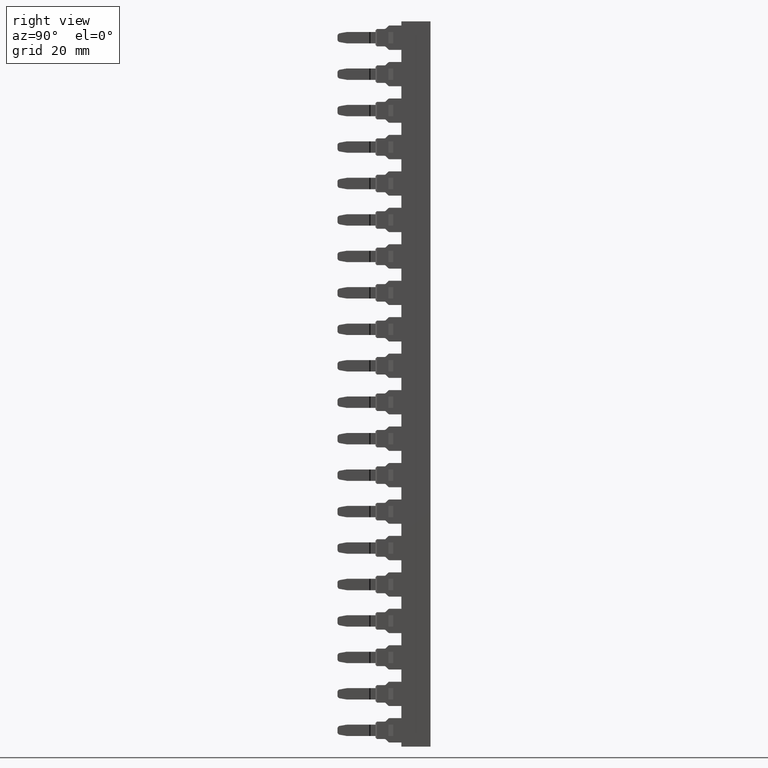
[diagram: clean part render]
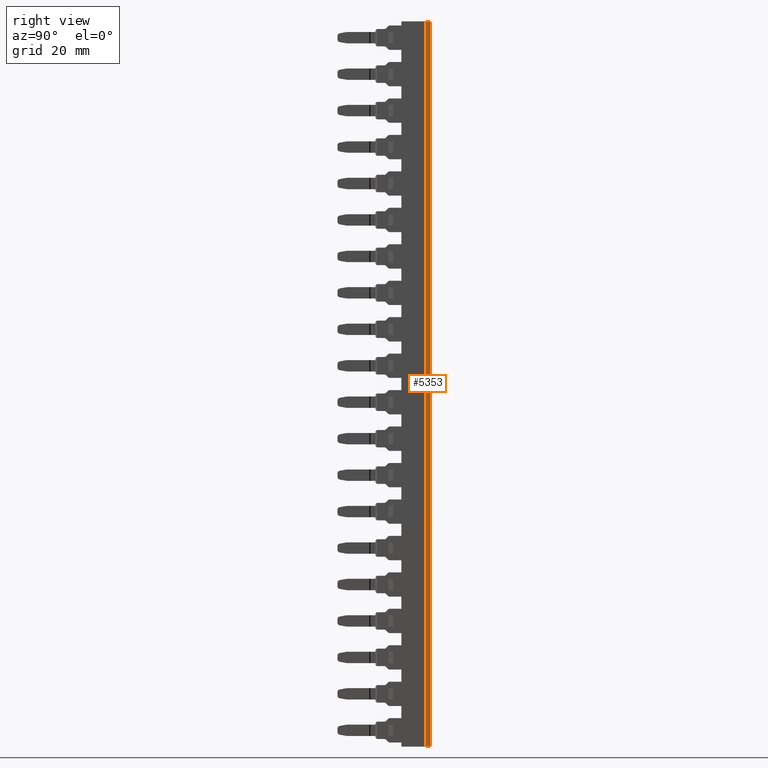
[diagram: same view with one face highlighted and labeled with its STEP entity id]
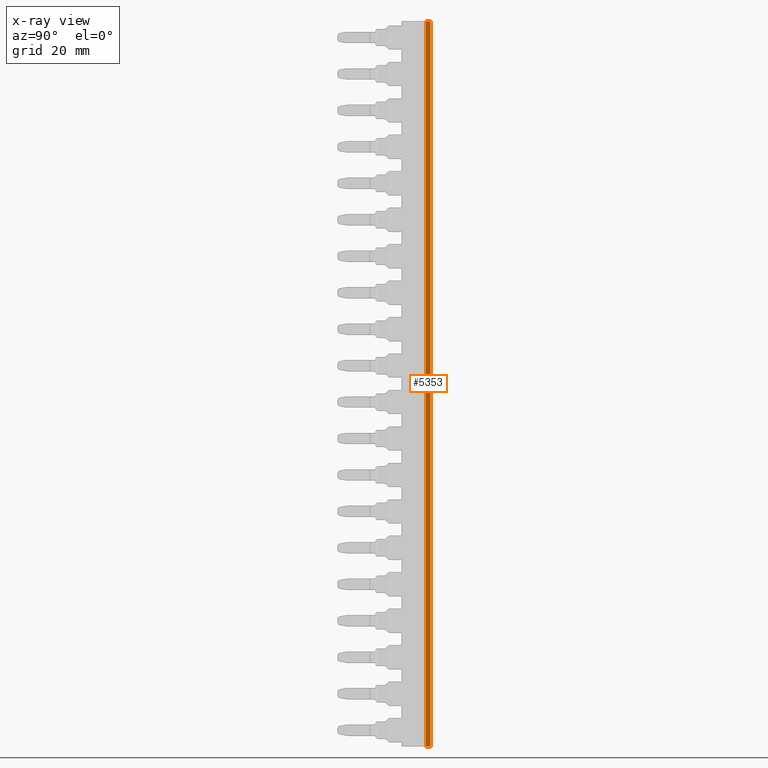
[diagram: x-ray of the same camera — body ghosted, the highlighted face saturated]
A machine part, right view. The second image highlights one B-rep face of the part: STEP entity #5353.
The next image is the same camera in x-ray: the body ghosted, the highlighted face saturated — about 0% of this face is hidden behind the body in this view.
In plain terms, the highlighted planar face has unit normal (1, -0, 0).
Its self-contained STEP definition (entity closure, byte-faithful):
#2288 = CARTESIAN_POINT ( 'NONE',  ( 112.9779176201148800, 250.3101602475986700, 55.40663662139579100 ) ) ;
#2297 = CARTESIAN_POINT ( 'NONE',  ( 112.9779176201162200, 249.1101602475997400, -135.5933633786042400 ) ) ;
#2350 = CARTESIAN_POINT ( 'NONE',  ( 112.9779176201162200, 250.3101602475997300, -135.5933633786042400 ) ) ;
#2381 = CARTESIAN_POINT ( 'NONE',  ( 112.9779176201148900, 249.1101602475987400, 55.40663662139579100 ) ) ;
#5353 = ADVANCED_FACE ( 'NONE', ( #11863 ), #11865, .T. ) ;
#7331 = EDGE_LOOP ( 'NONE', ( #20099, #20124, #20155, #20109 ) ) ;
#8551 = LINE ( 'NONE', #8559, #23560 ) ;
#8559 = CARTESIAN_POINT ( 'NONE',  ( 112.9779176201150200, 250.3101602475987900, 27.30663662139573600 ) ) ;
#8564 = DIRECTION ( 'NONE',  ( 7.847720069483345500E-029, -2.968510761029626400E-015, 1.000000000000000000 ) ) ;
#8620 = EDGE_CURVE ( 'NONE', #19013, #18992, #8551, .T. ) ;
#8649 = EDGE_CURVE ( 'NONE', #19008, #18996, #24739, .T. ) ;
#8679 = EDGE_CURVE ( 'NONE', #18992, #19008, #24830, .T. ) ;
#8715 = EDGE_CURVE ( 'NONE', #18996, #19013, #24986, .T. ) ;
#11863 = FACE_OUTER_BOUND ( 'NONE', #7331, .T. ) ;
#11865 = PLANE ( 'NONE',  #20517 ) ;
#11892 = DIRECTION ( 'NONE',  ( 1.000000000000000000, -0.0000000000000000000, 7.193572994224081300E-015 ) ) ;
#11901 = CARTESIAN_POINT ( 'NONE',  ( 112.9779176201148900, 249.1101602475988000, 50.00944813332092300 ) ) ;
#11902 = DIRECTION ( 'NONE',  ( 7.193572994224081300E-015, 0.0000000000000000000, -1.000000000000000000 ) ) ;
#18992 = VERTEX_POINT ( 'NONE', #2288 ) ;
#18996 = VERTEX_POINT ( 'NONE', #2297 ) ;
#19008 = VERTEX_POINT ( 'NONE', #2381 ) ;
#19013 = VERTEX_POINT ( 'NONE', #2350 ) ;
#20099 = ORIENTED_EDGE ( 'NONE', *, *, #8620, .T. ) ;
#20109 = ORIENTED_EDGE ( 'NONE', *, *, #8715, .T. ) ;
#20124 = ORIENTED_EDGE ( 'NONE', *, *, #8679, .T. ) ;
#20155 = ORIENTED_EDGE ( 'NONE', *, *, #8649, .T. ) ;
#20517 = AXIS2_PLACEMENT_3D ( 'NONE', #11901, #11892, #11902 ) ;
#23560 = VECTOR ( 'NONE', #8564, 1000.000000000000000 ) ;
#23618 = VECTOR ( 'NONE', #24813, 1000.000000000000000 ) ;
#23648 = VECTOR ( 'NONE', #24906, 1000.000000000000000 ) ;
#23670 = VECTOR ( 'NONE', #24995, 1000.000000000000000 ) ;
#24739 = LINE ( 'NONE', #24767, #23618 ) ;
#24767 = CARTESIAN_POINT ( 'NONE',  ( 112.9779176201148900, 249.1101602475988300, 50.00944813332092300 ) ) ;
#24813 = DIRECTION ( 'NONE',  ( 7.193572994224081300E-015, 0.0000000000000000000, -1.000000000000000000 ) ) ;
#24830 = LINE ( 'NONE', #24905, #23648 ) ;
#24905 = CARTESIAN_POINT ( 'NONE',  ( 112.9779176201148700, 249.1101602475987400, 55.40663662139579800 ) ) ;
#24906 = DIRECTION ( 'NONE',  ( -0.0000000000000000000, -1.000000000000000000, -0.0000000000000000000 ) ) ;
#24986 = LINE ( 'NONE', #25002, #23670 ) ;
#24995 = DIRECTION ( 'NONE',  ( 0.0000000000000000000, 1.000000000000000000, 0.0000000000000000000 ) ) ;
#25002 = CARTESIAN_POINT ( 'NONE',  ( 112.9779176201162400, 249.1101602475997400, -135.5933633786042400 ) ) ;